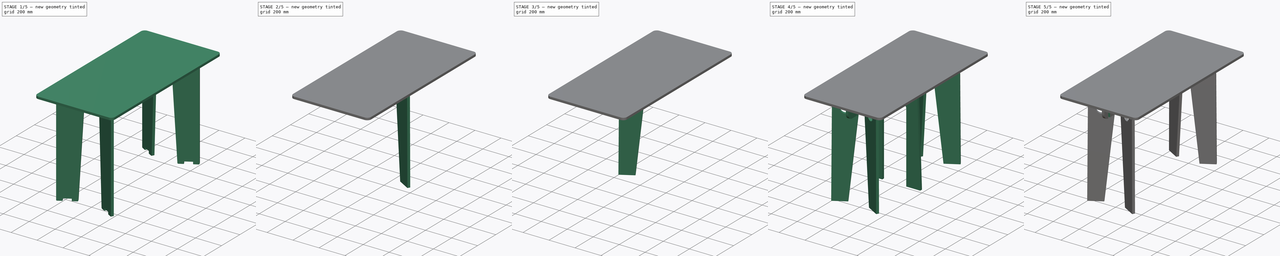
[diagram: build sequence overview — one tinted view per stage of 5, left to right]
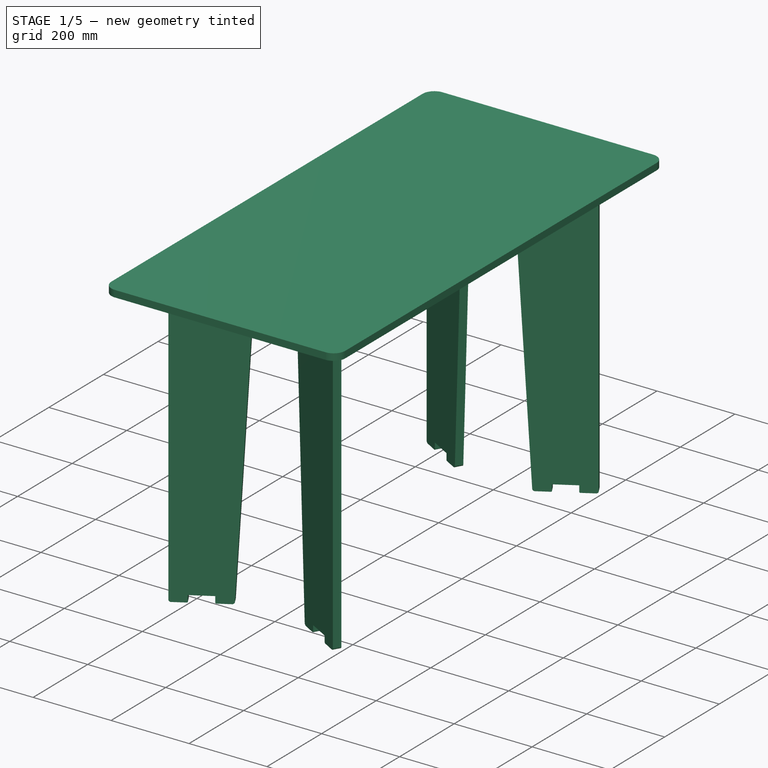
[diagram: stage 1 of 5 — iso view after this stage's code; geometry added in this stage tinted green]
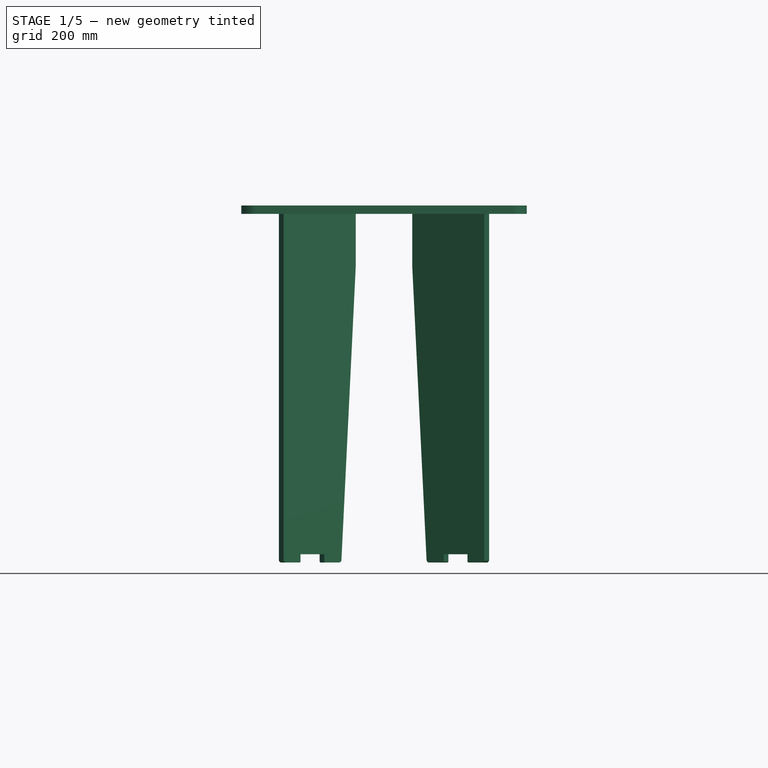
[diagram: stage 1 of 5 — front view after this stage's code; geometry added in this stage tinted green]
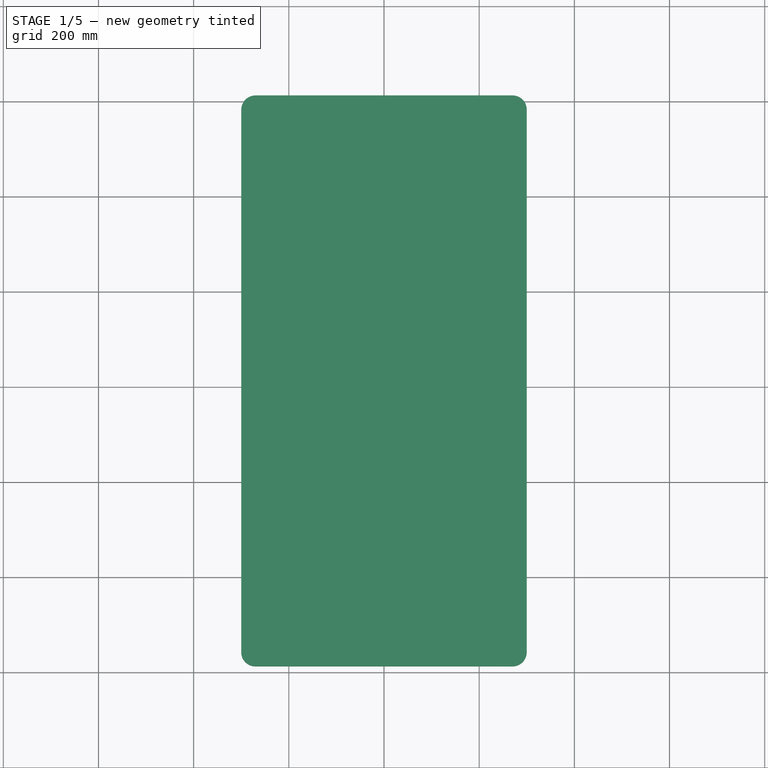
[diagram: stage 1 of 5 — top view after this stage's code; geometry added in this stage tinted green]
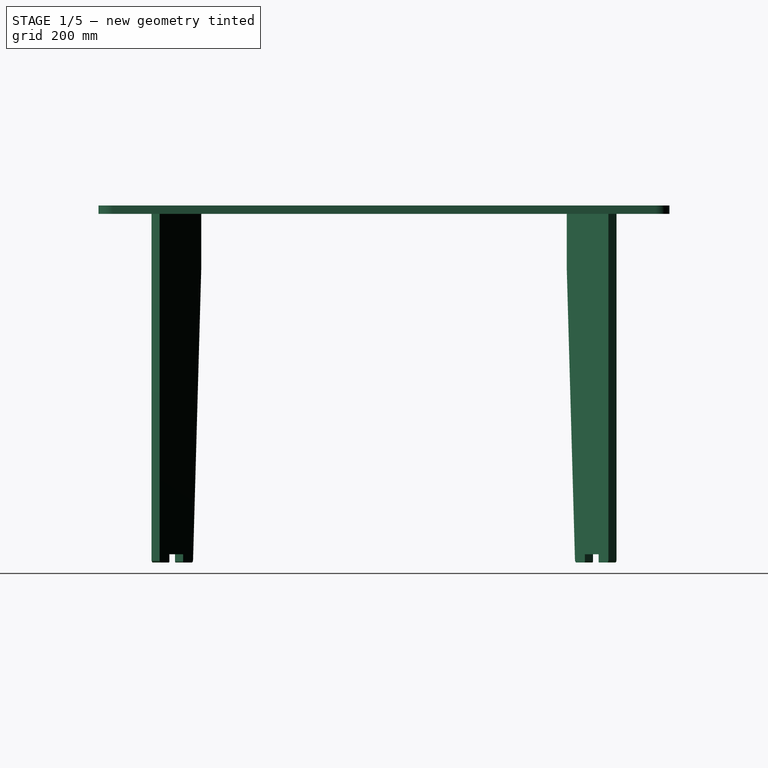
[diagram: stage 1 of 5 — right view after this stage's code; geometry added in this stage tinted green]
FCSTD DOCUMENT  (FreeCAD 0.16RUnknown)
Label: desk
License: CreativeCommons Attribution-ShareAlike
LicenseURL: http://creativecommons.org/licenses/by-sa/4.0/
objects: Part::Feature×10, Part::FeaturePython×9, Sketcher::SketchObject×7, PartDesign::Pad×6, Part::Mirroring×6, Part::MultiFuse×5, Part::Cut×5, Part::Part2DObjectPython×4, App::DocumentObjectGroup×2, Part::Extrusion×2, Part::Fuse×2, Spreadsheet::Sheet×1, PartDesign::Pocket×1
note: 64 computed .brp shape members not serialized (recipe doc carries the construction recipe); baked Part::Feature solids carry a one-line shape summary decoded from their .brp

FEATURE [Spreadsheet::Sheet] Spreadsheet  label="equations"
  cells = A1=Desk Height ; C1=750; A2=Desk Width; C2=600; A3=Desk Length ; C3=1200; A5=Plywood Thickness; B5=plw; C5(plw)=19.6; A6=Pocket Thickness; B6=pok; C6(pok)==C5 - 0.5; A7=Chipwood thickness ; B7=chip; C7(chip)=17.5; A9=Leg Height; B9=lgh; C9(lgh)==C1 - C7; A10=Leg width; B10=lgwt; C10(lgwt)==C2 - 250; A11=Leg Width Bottom; B11=lgwb; C11(lgwb)==C2 - 200; A12=Leg distance apart; B12=lgda; C12(lgda)==C3 - 250; A14=Top Width; B14=tpw; C14(tpw)==C2; A15=Top Length; B15=tpl; C15(tpl)==C3
FEATURE [Sketcher::SketchObject] Sketch  label="leg1"
  Placement = pos=(0,0,0) rot=(1,0,0;1.5708rad)
  expr: Constraints[15] = equations.lgh
  expr: Constraints[54] = equations.chip
  expr: Constraints.Constraint40 = Constraints.tewi
  expr: Constraints.Constraint17 = equations.plw * 5.5
  expr: Constraints.pocket = equations.pok
  expr: Constraints.Constraint16 = equations.lgwt
  sketch-geometry (24):
    g0: LineSegment StartX=-175 StartY=732.5 StartZ=0 EndX=-116.853 EndY=732.5 EndZ=0
    g1: LineSegment StartX=175 StartY=732.5 StartZ=0 EndX=200 EndY=0 EndZ=0
    g2: LineSegment StartX=200 StartY=0 StartZ=0 EndX=92.2 EndY=0 EndZ=0
    g3: LineSegment StartX=92.2 StartY=0 StartZ=0 EndX=92.3704 EndY=540.252 EndZ=0
    g4: LineSegment StartX=50.1356 StartY=582.5 StartZ=0 EndX=-50.1356 EndY=582.5 EndZ=0
    g5: LineSegment StartX=-92.3704 StartY=540.252 StartZ=0 EndX=-92.2 EndY=0 EndZ=0
    g6: LineSegment StartX=-92.2 StartY=0 StartZ=0 EndX=-200 EndY=0 EndZ=0
    g7: LineSegment StartX=-200 StartY=0 StartZ=0 EndX=-175 EndY=732.5 EndZ=0
    g8: LineSegment StartX=-116.853 StartY=750 StartZ=0 EndX=-46.8532 EndY=750 EndZ=0
    g9: LineSegment StartX=-46.8532 StartY=750 StartZ=0 EndX=-46.8532 EndY=732.5 EndZ=0
    g10: LineSegment StartX=-116.853 StartY=732.5 StartZ=0 EndX=-116.853 EndY=750 EndZ=0
    g11: LineSegment StartX=46.8532 StartY=750 StartZ=0 EndX=116.853 EndY=750 EndZ=0
    g12: LineSegment StartX=116.853 StartY=750 StartZ=0 EndX=116.853 EndY=732.5 EndZ=0
    g13: LineSegment StartX=46.8532 StartY=732.5 StartZ=0 EndX=46.8532 EndY=750 EndZ=0
    g14: LineSegment StartX=116.853 StartY=732.5 StartZ=0 EndX=175 EndY=732.5 EndZ=0
    g15: LineSegment StartX=-46.8532 StartY=732.5 StartZ=0 EndX=-9.55 EndY=732.5 EndZ=0
    g16: LineSegment StartX=9.55 StartY=732.5 StartZ=0 EndX=9.55 EndY=682.5 EndZ=0
    g17: LineSegment StartX=9.55 StartY=682.5 StartZ=0 EndX=-9.55 EndY=682.5 EndZ=0
    g18: LineSegment StartX=-9.55 StartY=682.5 StartZ=0 EndX=-9.55 EndY=732.5 EndZ=0
    g19: LineSegment StartX=9.55 StartY=732.5 StartZ=0 EndX=46.8532 EndY=732.5 EndZ=0
    g20: ArcOfCircle CenterX=50.1356 CenterY=540.265 CenterZ=0 NormalX=0 NormalY=0 NormalZ=1 Radius=42.2348 StartAngle=6.28287 EndAngle=7.85398
    g21: ArcOfCircle CenterX=-50.1356 CenterY=540.265 CenterZ=0 NormalX=0 NormalY=0 NormalZ=1 Radius=42.2348 StartAngle=1.5708 EndAngle=3.14191
    g22: Circle CenterX=-112.351 CenterY=652.5 CenterZ=0 NormalX=0 NormalY=0 NormalZ=1 Radius=40
    g23: Circle CenterX=112.351 CenterY=652.5 CenterZ=0 NormalX=0 NormalY=0 NormalZ=1 Radius=40
  constraints (59):
    c: Coincident(g14,g1)
    c: Coincident(g1,g2)
    c: Horizontal(g2)
    c: Coincident(g2,g3)
    c: Coincident(g5,g6)
    c: Horizontal(g6)
    c: Coincident(g6,g7)
    c: Coincident(g7,g0)
    c: Symmetric(g0,g14,g-2)
    c: Symmetric(g5,g2,g-2)
    c: Symmetric(g1,g6,g-2)
    c: PointOnObject(g1,g-1)  'onX'
    c: DistanceX(g6,g6) = 107.8  'Constraint17'
    c: DistanceX(g0,g14) = 350  'Constraint16'
    c: DistanceX(g6,g1) = 400  'Constraint15'
    c: DistanceY(g1,g14) = 732.5
    c: Coincident(g8,g9)
    c: Coincident(g10,g8)
    c: Horizontal(g8)
    c: Vertical(g9)
    c: Vertical(g10)
    c: Coincident(g11,g12)
    c: Coincident(g13,g11)
    c: Horizontal(g11)
    c: Vertical(g12)
    c: Vertical(g13)
    c: DistanceX(g8,g8) = 70  'tewi'
    c: DistanceX(g11,g11) = 70  'Constraint40'
    c: Tangent(g0,g14)  'Constraint39'
    c: Coincident(g13,g19)  'Constraint37'
    c: Coincident(g12,g14)  'Constraint36'
    c: Coincident(g0,g10)  'Constraint33'
    c: Coincident(g15,g9)
    c: Tangent(g0,g15)
    c: Symmetric(g9,g13,g-2)
    c: Coincident(g16,g17)
    c: Coincident(g17,g18)
    c: Horizontal(g17)
    c: Vertical(g16)
    c: Vertical(g18)
    c: Coincident(g15,g18)  'Constraint43'
    c: Coincident(g19,g16)  'Constraint42'
    c: Tangent(g15,g19)
    c: Tangent(g3,g20) = -1.5708
    c: Tangent(g4,g20) = -1.5708
    c: Tangent(g4,g21) = -1.5708
    c: Tangent(g5,g21) = -1.5708
    c: Symmetric(g21,g20,g-2)
    c: Horizontal(g4)
    c: DistanceY(g4,g1) = 150
    c: Symmetric(g22,g23,g-2)
    c: DistanceY(g23,g12) = 80
    c: Radius(g22) = 40
    c: Equal(g22,g23)
    c: DistanceY(g12,g12) = 17.5
    c: Equal(g9,g12)
    c: DistanceY(g16,g16) = 50
    c: DistanceX(g17,g17) = 19.1  'pocket'
    c: Symmetric(g16,g15,g-2)
FEATURE [Sketcher::SketchObject] Sketch002
  Placement = pos=(0,0,750) rot=(0,0,1;0rad)
  expr: Constraints[16] = equations.tpw
  expr: Constraints[15] = equations.tpl
  sketch-geometry (8):
    g0: LineSegment StartX=-270 StartY=600 StartZ=0 EndX=270 EndY=600 EndZ=0
    g1: LineSegment StartX=300 StartY=570 StartZ=0 EndX=300 EndY=-570 EndZ=0
    g2: LineSegment StartX=270 StartY=-600 StartZ=0 EndX=-270 EndY=-600 EndZ=0
    g3: LineSegment StartX=-300 StartY=-570 StartZ=0 EndX=-300 EndY=570 EndZ=0
    g4: ArcOfCircle CenterX=270 CenterY=570 CenterZ=0 NormalX=0 NormalY=0 NormalZ=1 Radius=30 StartAngle=0 EndAngle=1.5708
    g5: ArcOfCircle CenterX=-270 CenterY=570 CenterZ=0 NormalX=0 NormalY=0 NormalZ=1 Radius=30 StartAngle=1.5708 EndAngle=3.14159
    g6: ArcOfCircle CenterX=-270 CenterY=-570 CenterZ=0 NormalX=0 NormalY=0 NormalZ=1 Radius=30 StartAngle=3.14159 EndAngle=4.71239
    g7: ArcOfCircle CenterX=270 CenterY=-570 CenterZ=0 NormalX=0 NormalY=0 NormalZ=1 Radius=30 StartAngle=4.71239 EndAngle=6.28319
  constraints (19):
    c: Horizontal(g0)
    c: Horizontal(g2)
    c: Vertical(g1)
    c: Vertical(g3)
    c: Tangent(g0,g4) = 1.5708
    c: Tangent(g1,g4) = 1.5708
    c: Tangent(g0,g5) = 1.5708
    c: Tangent(g3,g5) = 1.5708
    c: Tangent(g2,g6) = 1.5708
    c: Tangent(g3,g6) = 1.5708
    c: Tangent(g1,g7) = 1.5708
    c: Tangent(g2,g7) = 1.5708
    c: Equal(g5,g6)
    c: Equal(g6,g7)
    c: Radius(g5) = 30
    c: Distance(g0,g2) = 1200
    c: Distance(g3,g1) = 600
    c: Symmetric(g4,g5,g-2)
    c: Symmetric(g6,g5,g-1)
FEATURE [PartDesign::Pad] Pad002  label="topInitial"
  Length = 17.5
  Length2 = 100
  Placement = pos=(0,0,750) rot=(0,0,1;0rad)
  Reversed = true
  Sketch = -> Sketch002
  Type = 0
  expr: Length = equations.chip
FEATURE [Part::Feature] Cut003_cs
  shape: bbox 600 x 1200 x 2e-07 mm, 0 faces, 0 solids (baked)
FEATURE [Part::Part2DObjectPython] Shape2DView  # Draft 2D object (typed FeaturePython)
  Base = -> Cut
  HiddenLines = false
  Projection = (-0.5,0.866025,-1.19209e-07)
  ProjectionMode = 0
  SegmentLength = 0.05
  Tessellation = false
FEATURE [App::DocumentObjectGroup] Group001  label="secondDesign"
  Group = -> [Line,Fusion002,Fusion004,Cut003,Cut003_cs,Shape2DView]
FEATURE [Sketcher::SketchObject] Sketch008  label="leg_1_3"
  Placement = pos=(0,131,0) rot=(0.935113,-0.250563,-0.250563;1.63783rad)
  expr: Constraints[20] = equations.chip
  expr: Constraints[19] = equations.lgh + equations.chip
  expr: Constraints[18] = equations.lgwt / 2
  sketch-geometry (17):
    g0: LineSegment StartX=80 StartY=749.92 StartZ=0 EndX=130 EndY=749.92 EndZ=0
    g1: LineSegment StartX=130 StartY=749.92 StartZ=0 EndX=130 EndY=732.42 EndZ=0
    g2: LineSegment StartX=130 StartY=732.42 StartZ=0 EndX=205 EndY=732.42 EndZ=0
    g3: LineSegment StartX=205 StartY=732.42 StartZ=0 EndX=205 EndY=749.92 EndZ=0
    g4: LineSegment StartX=205 StartY=749.92 StartZ=0 EndX=255 EndY=749.92 EndZ=0
    g5: LineSegment StartX=255 StartY=749.92 StartZ=0 EndX=255 EndY=5.16475 EndZ=0
    g6: LineSegment StartX=249.755 StartY=-0.0801346 StartZ=0 EndX=216.26 EndY=-0.0801346 EndZ=0
    g7: LineSegment StartX=114.567 StartY=5.45017 StartZ=0 EndX=80 EndY=619.92 EndZ=0
    g8: LineSegment StartX=80 StartY=619.92 StartZ=0 EndX=80 EndY=749.92 EndZ=0
    g9: LineSegment StartX=156.289 StartY=17.297 StartZ=0 EndX=213.883 EndY=17.297 EndZ=0
    g10: LineSegment StartX=213.883 StartY=17.297 StartZ=0 EndX=213.883 EndY=2.29701 EndZ=0
    g11: LineSegment StartX=156.289 StartY=2.29701 StartZ=0 EndX=156.289 EndY=17.297 EndZ=0
    g12: LineSegment StartX=153.912 StartY=-0.0801346 StartZ=0 EndX=120.417 EndY=-0.0801346 EndZ=0
    g13: ArcOfCircle CenterX=120.417 CenterY=5.77927 CenterZ=0 NormalX=0 NormalY=0 NormalZ=1 Radius=5.85941 StartAngle=3.19779 EndAngle=4.71239
    g14: ArcOfCircle CenterX=249.755 CenterY=5.16475 CenterZ=0 NormalX=0 NormalY=0 NormalZ=1 Radius=5.24489 StartAngle=4.71239 EndAngle=6.28319
    g15: ArcOfCircle CenterX=216.26 CenterY=2.29701 CenterZ=0 NormalX=0 NormalY=0 NormalZ=1 Radius=2.37714 StartAngle=3.14159 EndAngle=4.71239
    g16: ArcOfCircle CenterX=153.912 CenterY=2.29701 CenterZ=0 NormalX=0 NormalY=0 NormalZ=1 Radius=2.37714 StartAngle=4.71239 EndAngle=6.28319
  constraints (40):
    c: Coincident(g0,g1)
    c: Coincident(g1,g2)
    c: Horizontal(g2)
    c: Coincident(g2,g3)
    c: Coincident(g3,g4)
    c: Horizontal(g4)
    c: Coincident(g4,g5)
    c: Horizontal(g6)
    c: Coincident(g7,g8)
    c: Coincident(g8,g0)
    c: Vertical(g8)
    c: Vertical(g3)
    c: Vertical(g1)
    c: Horizontal(g0)
    c: Equal(g0,g4)
    c: DistanceX(g0,g0) = 50
    c: Vertical(g5)
    c: Equal(g1,g3)
    c: Distance(g0,g5) = 175
    c: Distance(g4,g6) = 750
    c: DistanceY(g3,g3) = 17.5
    c: DistanceY(g8,g8) = 130
    c: DistanceX(g-2,g7) = 80
    c: Coincident(g9,g10)
    c: Coincident(g11,g9)
    c: Horizontal(g9)
    c: Vertical(g10)
    c: Vertical(g11)
    c: Tangent(g6,g12)
    c: Equal(g12,g6)
    c: Tangent(g7,g13) = 1.5708
    c: Tangent(g12,g13) = 1.5708
    c: Tangent(g5,g14) = 1.5708
    c: Tangent(g6,g14) = 1.5708
    c: Tangent(g6,g15) = 1.5708
    c: Tangent(g10,g15) = -1.5708
    c: Tangent(g11,g16) = -1.5708
    c: Tangent(g12,g16) = 1.5708
    c: Equal(g15,g16)
    c: DistanceY(g11,g11) = 15
FEATURE [PartDesign::Pad] Pad007
  Length = 19.6
  Length2 = 100
  Placement = pos=(0,131,0) rot=(0.935113,-0.250563,-0.250563;1.63783rad)
  Sketch = -> Sketch008
  Type = 0
  expr: Length = equations.plw
FEATURE [Part::Mirroring] Part__Mirroring004  label="Pad007 (Mirror #5)"
  Base = (0,0,0)
  Normal = (1,0,0)
  Source = -> Pad007
FEATURE [Part::MultiFuse] Fusion005
  Shapes = -> [Part__Mirroring004,Pad007]
FEATURE [Part::Mirroring] Part__Mirroring005  label="Fusion005 (Mirror #6)"
  Base = (0,0,0)
  Normal = (0,1,0)
  Placement = pos=(0,950,0) rot=(0,0,1;0rad)
  Source = -> Fusion005
FEATURE [Part::MultiFuse] Fusion006  label="leg_3"
  Placement = pos=(0,-475,0) rot=(0,0,1;0rad)
  Shapes = -> [Part__Mirroring005,Fusion005]
FEATURE [Part::FeaturePython] Clone008  label="Clone of Fusion006"  # Draft clone (typed FeaturePython)
  Objects = -> [Fusion006]
  Placement = pos=(0,-475,0) rot=(0,0,1;0rad)
  Scale = (1,1,1)
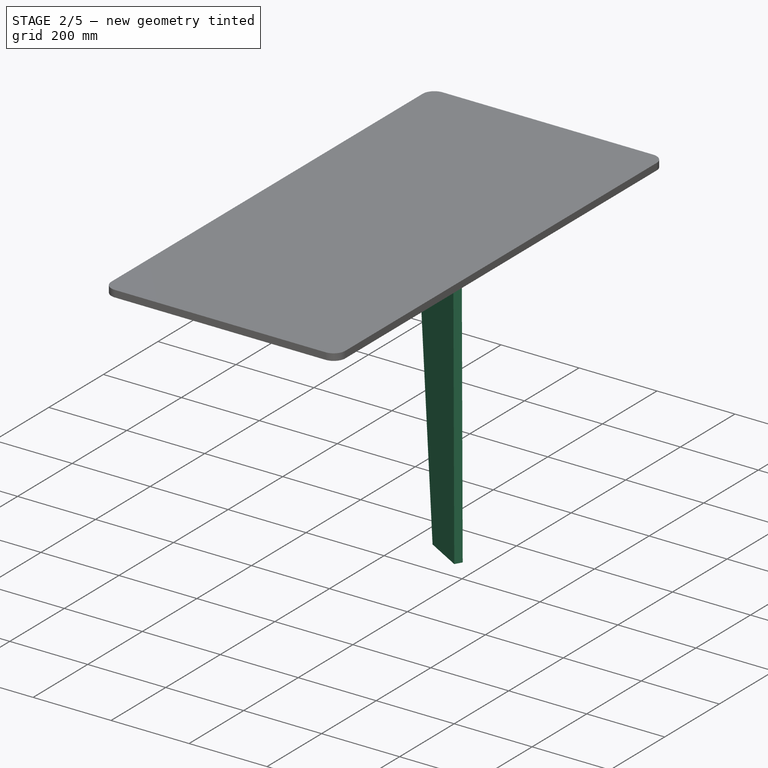
[diagram: stage 2 of 5 — iso view after this stage's code; geometry added in this stage tinted green]
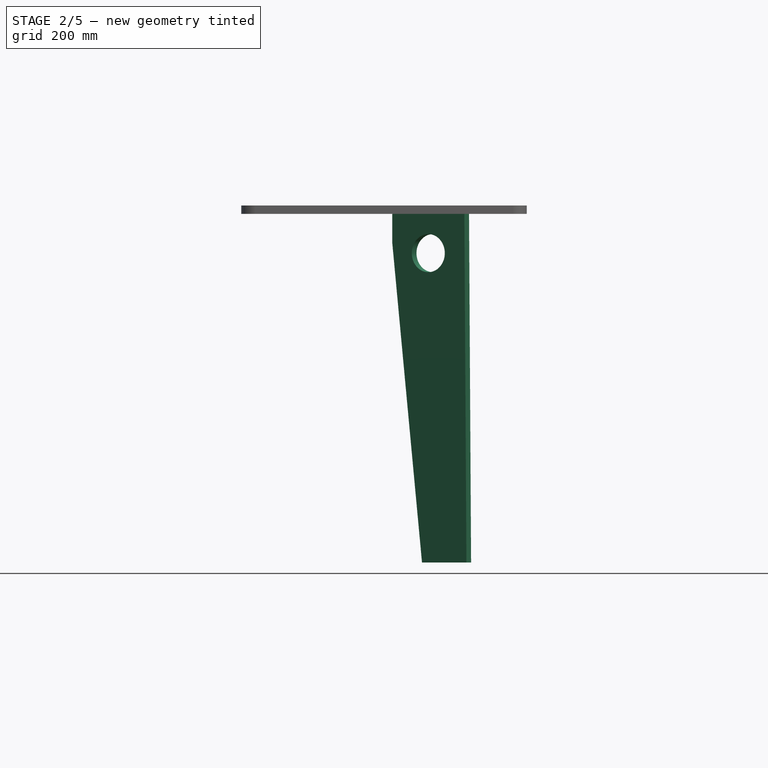
[diagram: stage 2 of 5 — front view after this stage's code; geometry added in this stage tinted green]
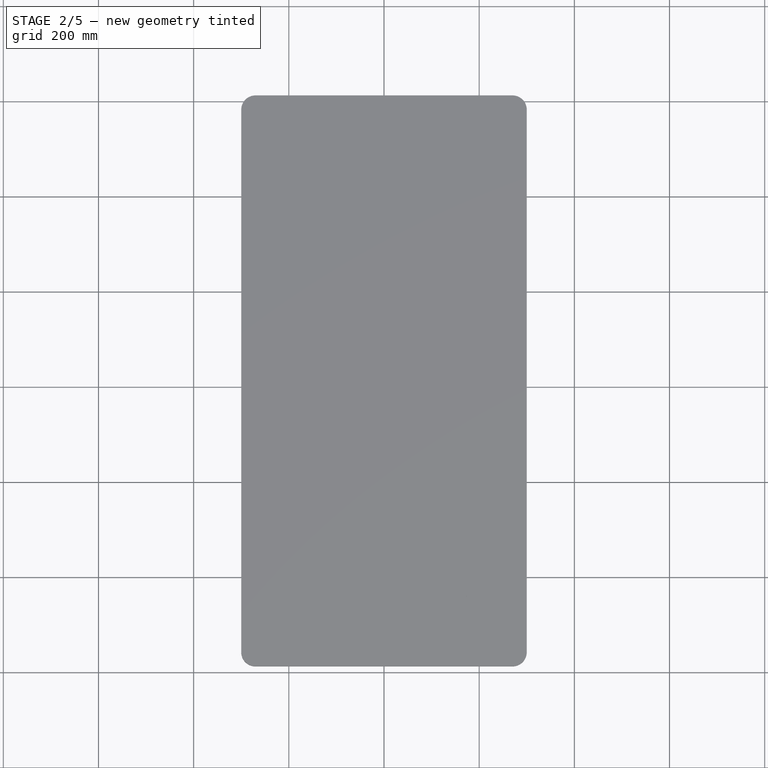
[diagram: stage 2 of 5 — top view after this stage's code; geometry added in this stage tinted green]
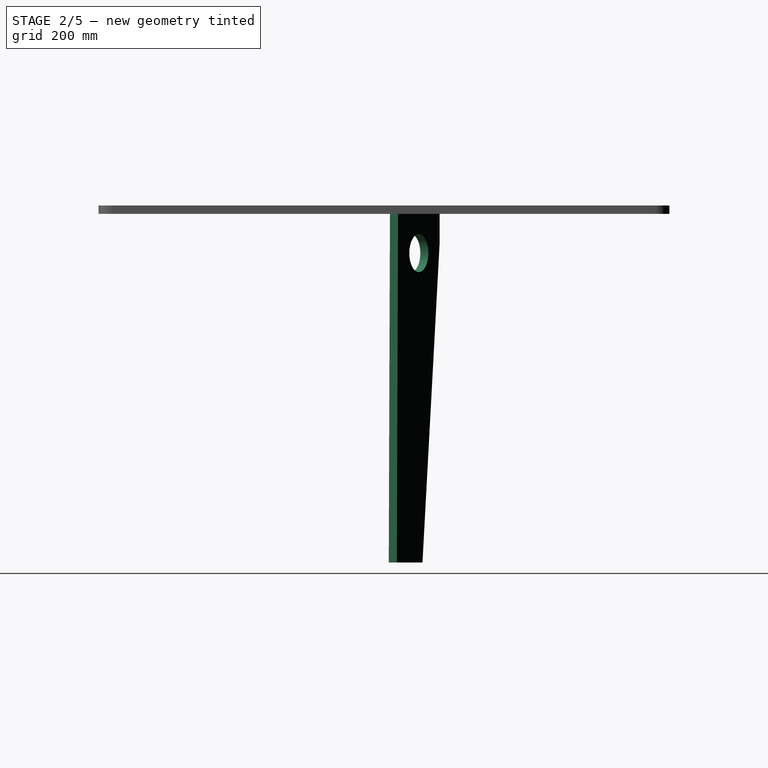
[diagram: stage 2 of 5 — right view after this stage's code; geometry added in this stage tinted green]
FEATURE [Part::Feature] Face
  shape: bbox 155.9 x 90 x 750 mm, 1 faces, 0 solids (baked)
FEATURE [Part::Feature] Face001
  shape: bbox 69.28 x 40 x 80 mm, 1 faces, 0 solids (baked)
FEATURE [Part::Extrusion] Extrusion
  Base = -> Face
  Dir = (-9.8,16.9741,0)
  Solid = true
FEATURE [Part::Extrusion] Extrusion001
  Base = -> Face001
  Dir = (-205.47,355.884,0)
  Solid = true
FEATURE [Part::Cut] Cut
  Base = -> Extrusion
  Placement = pos=(0,110,0) rot=(0,0,1;0rad)
  Tool = -> Extrusion001
FEATURE [Part::FeaturePython] Clone005  label="Clone of Cut"  # Draft clone (typed FeaturePython)
  Objects = -> [Cut]
  Scale = (1,1,1)
FEATURE [Part::Mirroring] Part__Mirroring002  label="Clone of Cut (Mirror #3)"
  Base = (0,0,0)
  Normal = (1,0,0)
  Placement = pos=(0,110,0) rot=(0,0,1;0rad)
  Source = -> Clone005
FEATURE [Part::FeaturePython] Clone007  label="Clone of topInitial001"  # Draft clone (typed FeaturePython)
  Objects = -> [Pad002]
  Placement = pos=(0,0,750) rot=(0,0,1;0rad)
  Scale = (1,1,1)
FEATURE [Part::Cut] Cut004  label="top_3"
  Base = -> Clone007
  Tool = -> Clone008
FEATURE [Part::Feature] Cut004_cs
  shape: bbox 600 x 1200 x 2e-07 mm, 0 faces, 0 solids (baked)
FEATURE [Part::Part2DObjectPython] Shape2DView001  # Draft 2D object (typed FeaturePython)
  Base = -> Pad007
  FaceNumbers = [10]
  HiddenLines = false
  Projection = (-0.5,-0.866025,-1.19209e-07)
  ProjectionMode = 0
  SegmentLength = 0.05
  Tessellation = false
FEATURE [Part::Feature] Cut004_cs001
  shape: bbox 600 x 1200 x 2e-07 mm, 0 faces, 0 solids (baked)
FEATURE [Part::Part2DObjectPython] Shape2DView002  # Draft 2D object (typed FeaturePython)
  Base = -> Pad007
  HiddenLines = false
  Projection = (-0.5,-0.866025,-1.19209e-07)
  ProjectionMode = 0
  SegmentLength = 0.05
  Tessellation = false
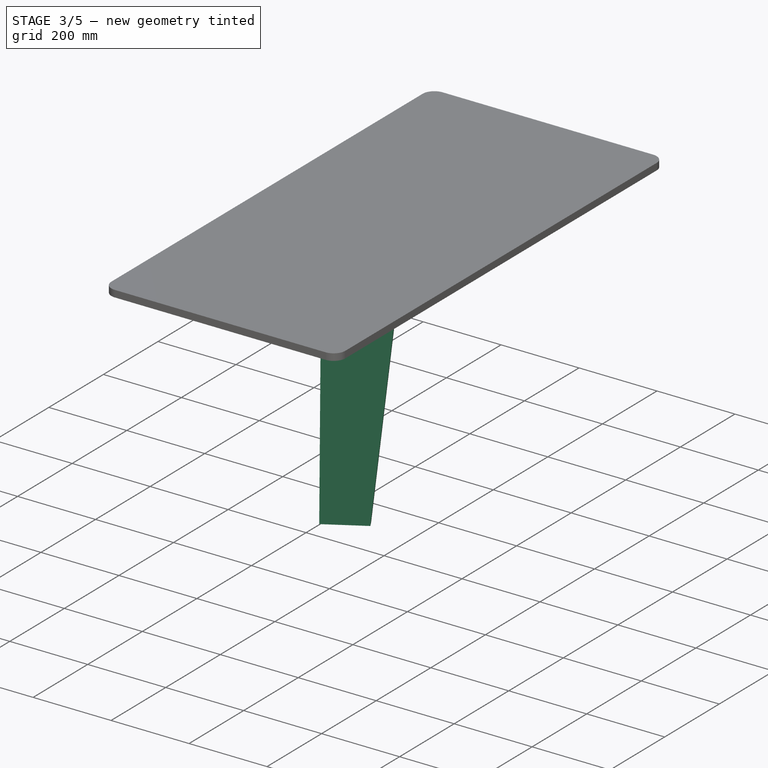
[diagram: stage 3 of 5 — iso view after this stage's code; geometry added in this stage tinted green]
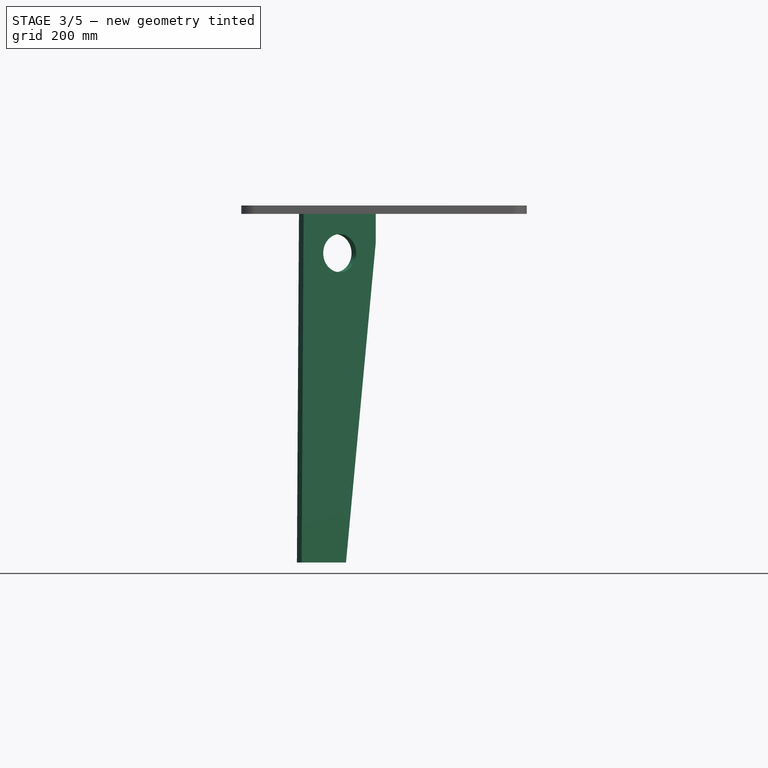
[diagram: stage 3 of 5 — front view after this stage's code; geometry added in this stage tinted green]
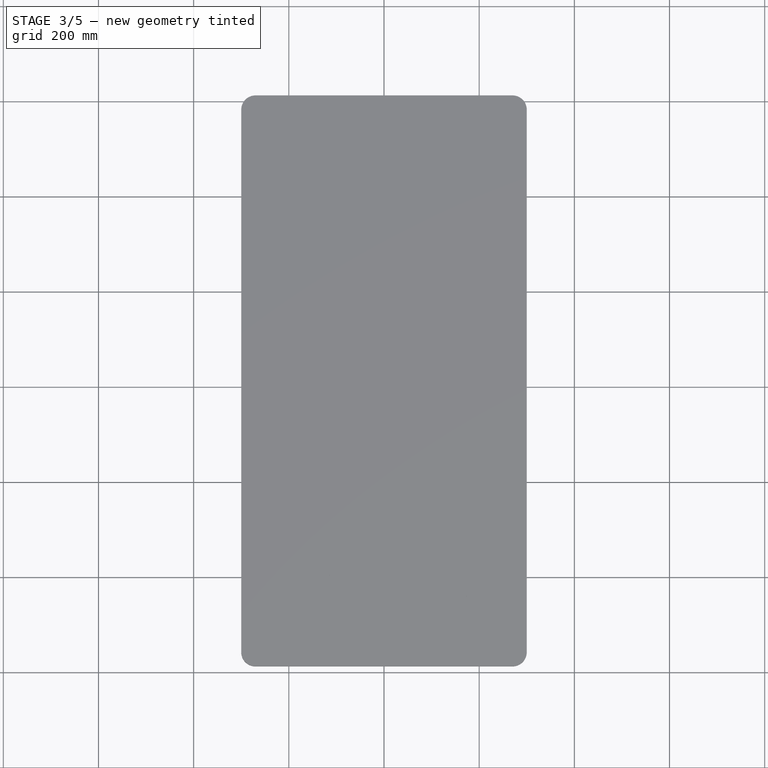
[diagram: stage 3 of 5 — top view after this stage's code; geometry added in this stage tinted green]
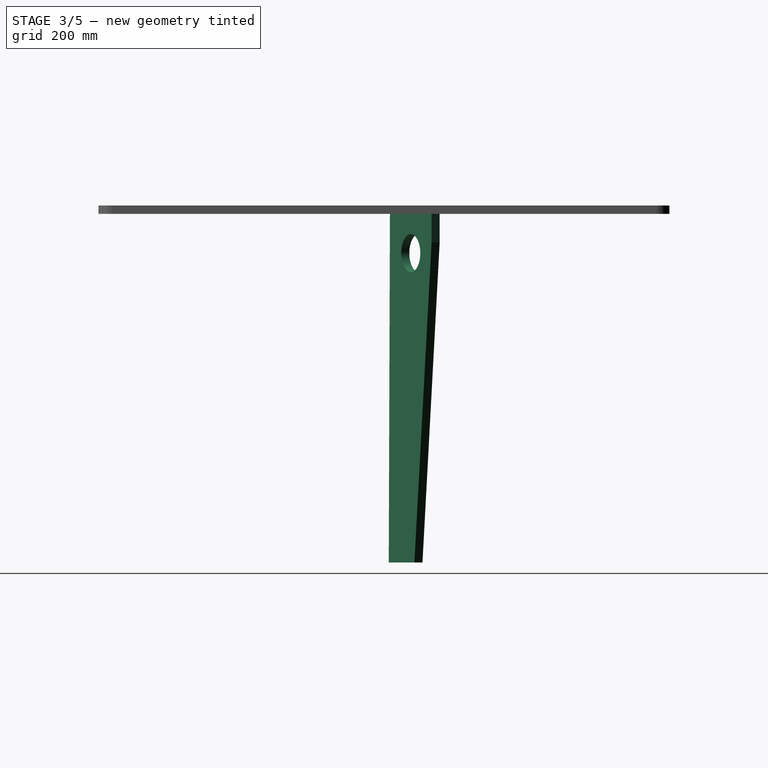
[diagram: stage 3 of 5 — right view after this stage's code; geometry added in this stage tinted green]
FEATURE [Part::Feature] Cut001_cs  label="top"
  shape: bbox 600 x 1200 x 2e-07 mm, 0 faces, 0 solids (baked)
FEATURE [Part::Feature] Cut002_cs  label="stem"
  shape: bbox 2e-07 x 1075 x 99.1 mm, 0 faces, 0 solids (baked)
FEATURE [Part::Feature] Fusion_cs  label="bothLeg"
  shape: bbox 400 x 950 x 750 mm, 0 faces, 0 solids (baked)
FEATURE [Part::Feature] Pad004_cs  label="leg"
  shape: bbox 400 x 2e-07 x 750 mm, 0 faces, 0 solids (baked)
FEATURE [Part::Feature] Cut001_cs001  label="roundTopChip"
  shape: bbox 600 x 1200 x 2e-07 mm, 0 faces, 0 solids (baked)
FEATURE [App::DocumentObjectGroup] Group  label="firstDesign"
  Group = -> [Pad002,Cut001_cs001,Pad004_cs,Fusion_cs,Cut001_cs,Cut002_cs,Cut002,Cut001,Fusion,Pad005]
FEATURE [Sketcher::SketchObject] Sketch007
  Placement = pos=(0,110,0) rot=(0.935113,-0.250563,-0.250563;1.63783rad)
  expr: Constraints[29] = equations.lgwt / 4 + 20
  expr: Constraints[26] = equations.lgh
  expr: Constraints[14] = equations.plw * 5.5
  expr: Constraints[18] = equations.chip
  expr: Constraints[15] = equations.lgwt / 2
  sketch-geometry (10):
    g0: LineSegment StartX=92.2 StartY=0 StartZ=0 EndX=200 EndY=0 EndZ=0
    g1: LineSegment StartX=200 StartY=0 StartZ=0 EndX=195.004 EndY=732.5 EndZ=0
    g2: LineSegment StartX=195.004 StartY=732.5 StartZ=0 EndX=142.502 EndY=732.5 EndZ=0
    g3: LineSegment StartX=142.502 StartY=732.5 StartZ=0 EndX=142.502 EndY=750 EndZ=0
    g4: LineSegment StartX=142.502 StartY=750 StartZ=0 EndX=72.502 EndY=750 EndZ=0
    g5: LineSegment StartX=72.502 StartY=750 StartZ=0 EndX=72.502 EndY=732.5 EndZ=0
    g6: LineSegment StartX=72.502 StartY=732.5 StartZ=0 EndX=20 EndY=732.5 EndZ=0
    g7: LineSegment StartX=20 StartY=732.5 StartZ=0 EndX=20 EndY=672.5 EndZ=0
    g8: LineSegment StartX=20 StartY=672.5 StartZ=0 EndX=92.2 EndY=0 EndZ=0
    g9: Circle CenterX=107.5 CenterY=650 CenterZ=0 NormalX=0 NormalY=0 NormalZ=1 Radius=40
  constraints (30):
    c: Horizontal(g0)
    c: Coincident(g0,g1)
    c: Coincident(g1,g2)
    c: Horizontal(g2)
    c: Coincident(g2,g3)
    c: Coincident(g3,g4)
    c: Horizontal(g4)
    c: Coincident(g4,g5)
    c: Coincident(g5,g6)
    c: Horizontal(g6)
    c: DistanceX(g-2,g6) = 20
    c: PointOnObject(g0,g-1)
    c: Vertical(g5)
    c: Vertical(g3)
    c: DistanceX(g0,g0) = 107.8
    c: Distance(g6,g1) = 175
    c: Equal(g6,g2)
    c: DistanceX(g4,g4) = 70
    c: DistanceY(g3,g3) = 17.5
    c: Equal(g3,g5)
    c: DistanceX(g-2,g0) = 200
    c: Coincident(g6,g7)
    c: Vertical(g7)
    c: Coincident(g7,g8)
    c: Coincident(g8,g0)
    c: DistanceY(g7,g7) = 60
    c: Distance(g1,g0) = 732.5
    c: Distance(g9,g4) = 100
    c: Radius(g9) = 40
    c: DistanceX(g-2,g9) = 107.5
FEATURE [Part::Part2DObjectPython] Line  # Draft 2D object (typed FeaturePython)
  ChamferSize = 0
  Closed = false
  End = (0,-5.96046e-06,50)
  FilletRadius = 0
  Length = 50
  MakeFace = true
  Points = (2) [(0,0,0),(0,-5.96046e-06,50)]
  Start = (0,0,0)
  Subdivisions = 0
FEATURE [PartDesign::Pad] Pad006
  Length = 19.6
  Length2 = 100
  Placement = pos=(0,110,0) rot=(0.935113,-0.250563,-0.250563;1.63783rad)
  Reversed = true
  Sketch = -> Sketch007
  Type = 0
  expr: Length = equations.plw
FEATURE [Part::Mirroring] Part__Mirroring  label="Pad006 (Mirror #1)"
  Base = (3.05176e-05,63.4868,375)
  Normal = (1,0,-1.19209e-07)
  Source = -> Pad006
FEATURE [Part::FeaturePython] Clone004  label="slantTopClone"  # Draft clone (typed FeaturePython)
  Objects = -> [Pad002]
  Placement = pos=(0,0,750) rot=(0,0,1;0rad)
  Scale = (1,1,1)
FEATURE [Part::MultiFuse] Fusion003
  Shapes = -> [Cut,Part__Mirroring002]
FEATURE [Part::Mirroring] Part__Mirroring003  label="Fusion003 (Mirror #4)"
  Base = (0,0,0)
  Normal = (0,1,0)
  Placement = pos=(0,950,0) rot=(0,0,1;0rad)
  Source = -> Fusion003
FEATURE [Part::MultiFuse] Fusion004  label="legsSlant"
  Placement = pos=(0,-475,0) rot=(0,0,1;0rad)
  Shapes = -> [Fusion003,Part__Mirroring003]
FEATURE [Part::FeaturePython] Clone006  label="Clone of legsSlant"  # Draft clone (typed FeaturePython)
  Objects = -> [Fusion004]
  Placement = pos=(0,-475,0) rot=(0,0,1;0rad)
  Scale = (1,1,1)
FEATURE [Part::Cut] Cut003  label="topSlant"
  Base = -> Clone004
  Tool = -> Clone006
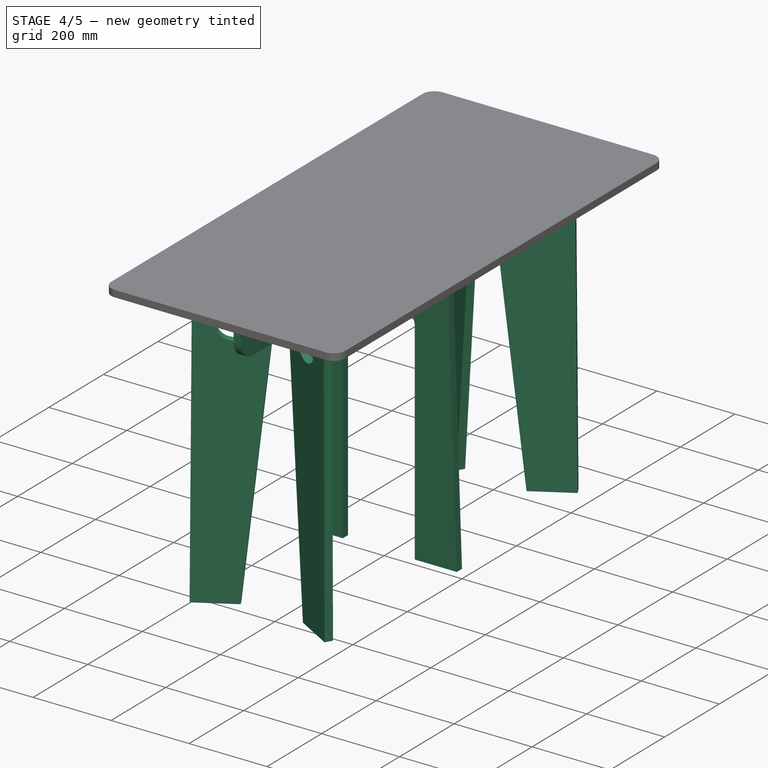
[diagram: stage 4 of 5 — iso view after this stage's code; geometry added in this stage tinted green]
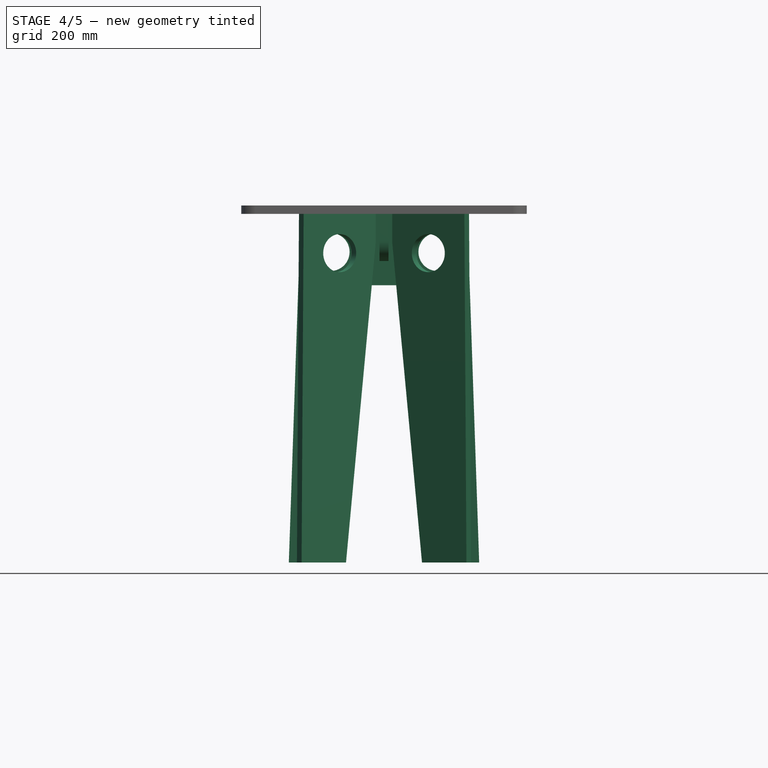
[diagram: stage 4 of 5 — front view after this stage's code; geometry added in this stage tinted green]
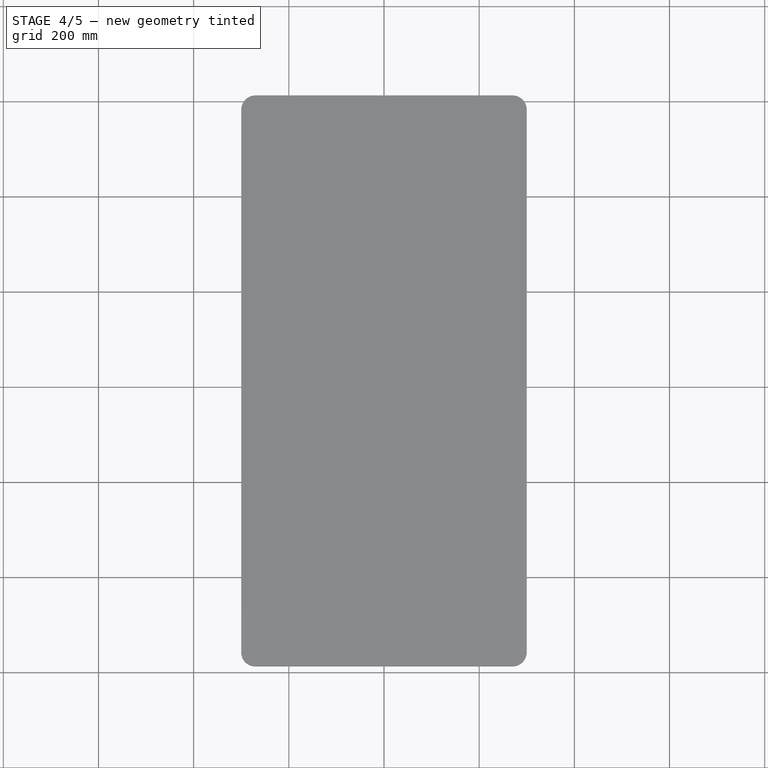
[diagram: stage 4 of 5 — top view after this stage's code; geometry added in this stage tinted green]
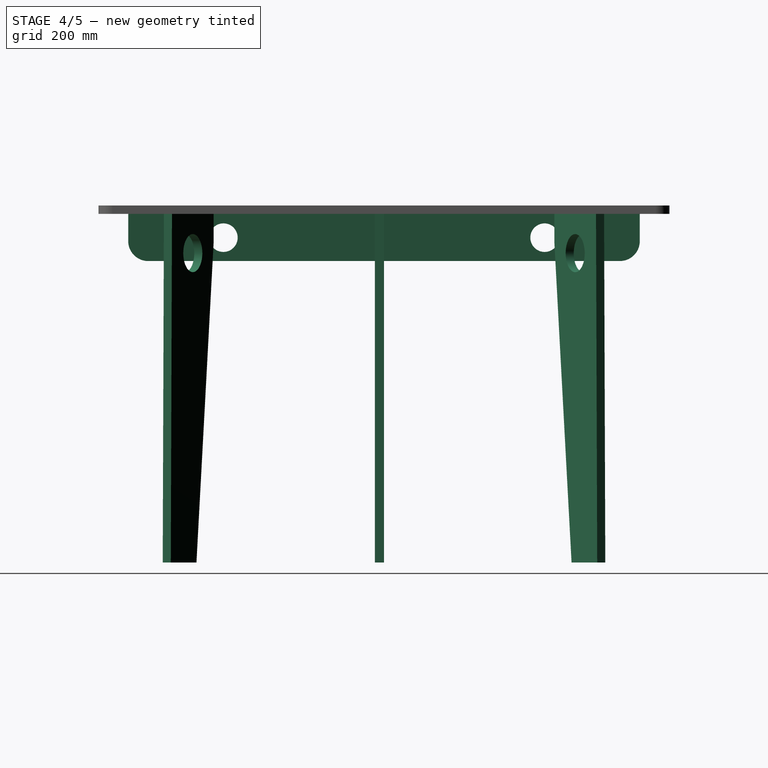
[diagram: stage 4 of 5 — right view after this stage's code; geometry added in this stage tinted green]
FEATURE [PartDesign::Pad] Pad004  label="legPad1"
  Length = 19.1
  Length2 = 100
  Placement = pos=(0,0,0) rot=(1,0,0;1.5708rad)
  Sketch = -> Sketch
  Type = 0
  expr: Length = equations.pok
FEATURE [Sketcher::SketchObject] Sketch005
  Placement = pos=(0,0,682.5) rot=(0.57735,0.57735,0.57735;2.0944rad)
  expr: Constraints[7] = equations.tpl - 125
  sketch-geometry (6):
    g0: LineSegment StartX=-537.5 StartY=50 StartZ=0 EndX=537.5 EndY=50 EndZ=0
    g1: LineSegment StartX=537.5 StartY=50 StartZ=0 EndX=537.5 EndY=-7.24359 EndZ=0
    g2: LineSegment StartX=495.641 StartY=-49.1028 StartZ=0 EndX=-495.641 EndY=-49.1028 EndZ=0
    g3: LineSegment StartX=-537.5 StartY=-7.24359 StartZ=0 EndX=-537.5 EndY=50 EndZ=0
    g4: ArcOfCircle CenterX=495.641 CenterY=-7.24359 CenterZ=0 NormalX=0 NormalY=0 NormalZ=1 Radius=41.8592 StartAngle=4.71239 EndAngle=6.28319
    g5: ArcOfCircle CenterX=-495.641 CenterY=-7.24359 CenterZ=0 NormalX=0 NormalY=0 NormalZ=1 Radius=41.8592 StartAngle=3.14159 EndAngle=4.71239
  constraints (13):
    c: Coincident(g0,g1)
    c: Coincident(g3,g0)
    c: Horizontal(g0)
    c: Horizontal(g2)
    c: Vertical(g1)
    c: Vertical(g3)
    c: Symmetric(g0,g0,g-2)
    c: DistanceX(g0,g0) = 1075
    c: Tangent(g1,g4) = 1.5708
    c: Tangent(g2,g4) = 1.5708
    c: Tangent(g2,g5) = 1.5708
    c: Tangent(g3,g5) = 1.5708
    c: Symmetric(g5,g4,g-2)
FEATURE [PartDesign::Pad] Pad005  label="StemMinusPocket"
  Length = 19.1
  Length2 = 100
  Midplane = true
  Placement = pos=(0,0,682.5) rot=(0.57735,0.57735,0.57735;2.0944rad)
  Sketch = -> Sketch005
  Type = 0
  expr: Length = equations.pok
FEATURE [Sketcher::SketchObject] Sketch006
  ExternalGeometry = -> [Pad005]
  Placement = pos=(9.55,0,682.5) rot=(0.57735,0.57735,0.57735;2.0944rad)
  Support = -> Pad005 [Face8]
  sketch-geometry (2):
    g0: Circle CenterX=-337.5 CenterY=0 CenterZ=0 NormalX=0 NormalY=0 NormalZ=1 Radius=30
    g1: Circle CenterX=337.5 CenterY=0 CenterZ=0 NormalX=0 NormalY=0 NormalZ=1 Radius=30
  constraints (8):
    c: PointOnObject(g1,g-1)
    c: PointOnObject(g0,g-1)
    c: Equal(g1,g0)
    c: Distance(g1,g-4) = 200
    c: Distance(g0,g-3) = 200
    c: Distance(g-1,g-4) = 537.5
    c: Distance(g-1,g-3) = 537.5
    c: Radius(g1) = 30
FEATURE [PartDesign::Pocket] Pocket  label="STEMprimitive"
  Length = 20
  Placement = pos=(0,0,682.5) rot=(0.57735,0.57735,0.57735;2.0944rad)
  Sketch = -> Sketch006
  Type = 0
FEATURE [Part::Fuse] Fusion001
  Base = -> Pad006
  Tool = -> Part__Mirroring
FEATURE [Part::FeaturePython] Clone003  label="Clone of Fusion001"  # Draft clone (typed FeaturePython)
  Objects = -> [Fusion001]
  Scale = (1,1,1)
FEATURE [Part::Mirroring] Part__Mirroring001  label="Clone of Fusion001 (Mirror #2)"
  Base = (0,0,0)
  Normal = (0,1,0)
  Placement = pos=(0,950,0) rot=(0,0,1;0rad)
  Source = -> Clone003
FEATURE [Part::Fuse] Fusion002
  Base = -> Fusion001
  Placement = pos=(0,-475,0) rot=(0,0,1;0rad)
  Tool = -> Part__Mirroring001
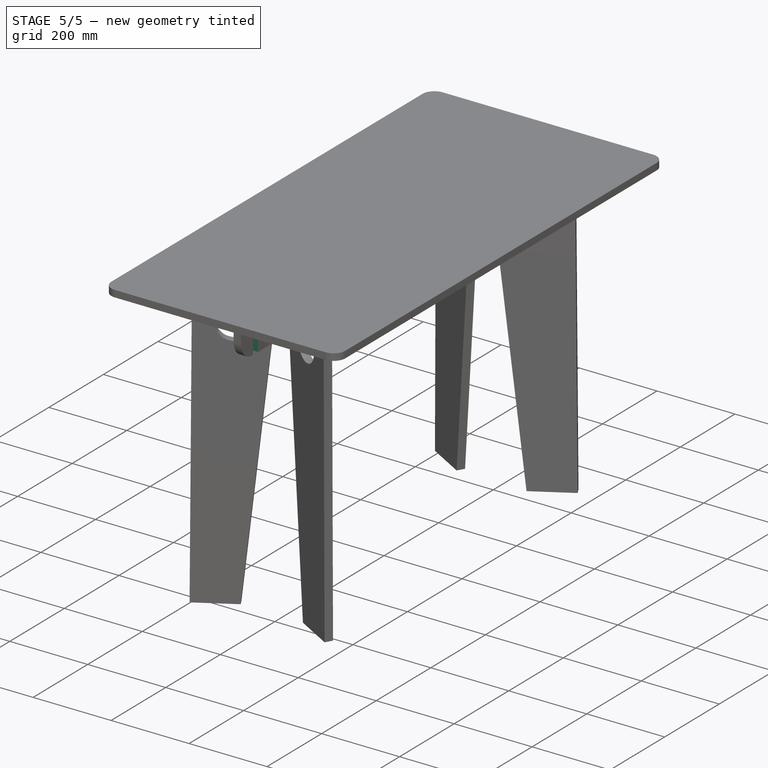
[diagram: stage 5 of 5 — iso view after this stage's code; geometry added in this stage tinted green]
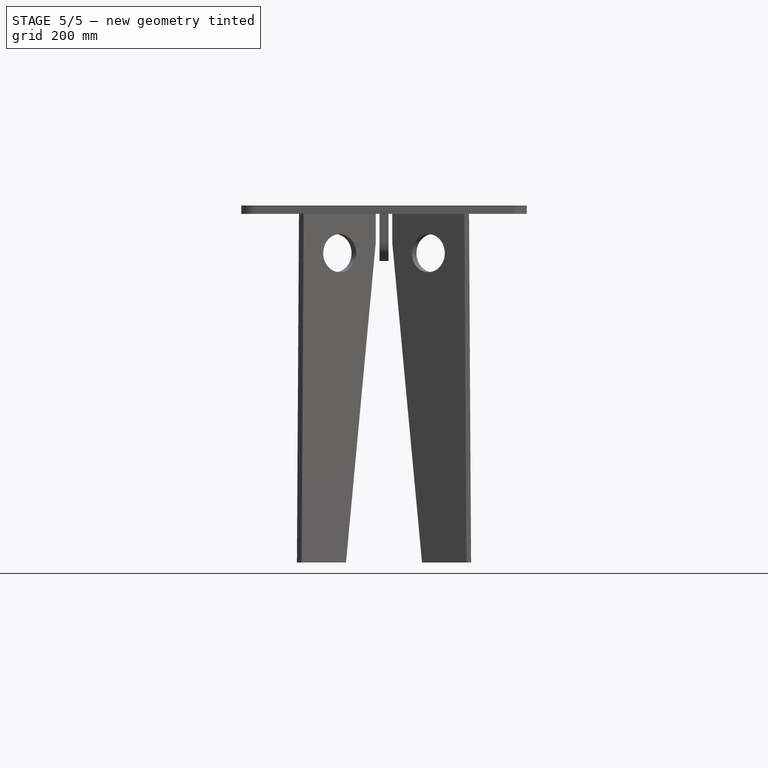
[diagram: stage 5 of 5 — front view after this stage's code; geometry added in this stage tinted green]
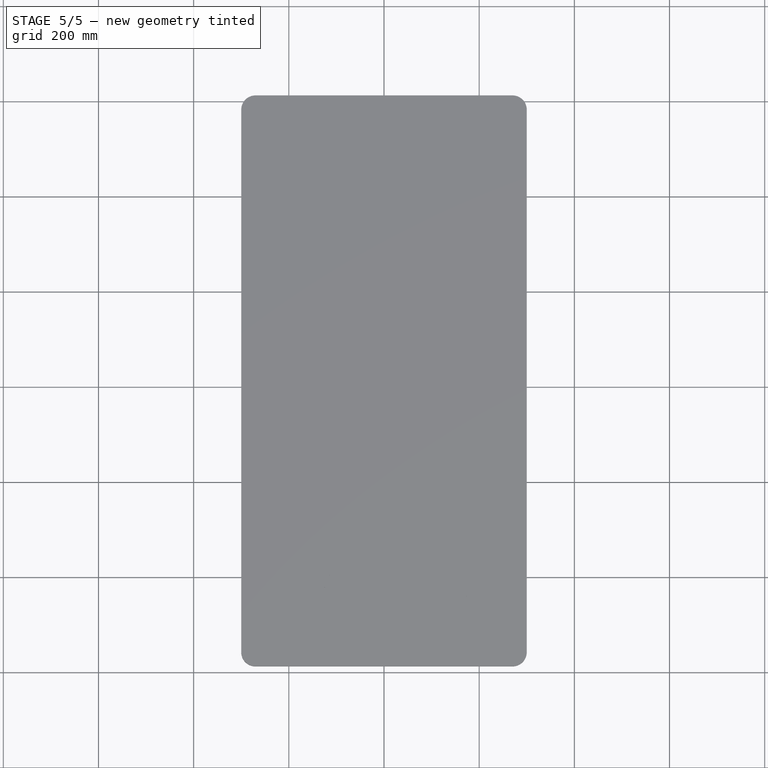
[diagram: stage 5 of 5 — top view after this stage's code; geometry added in this stage tinted green]
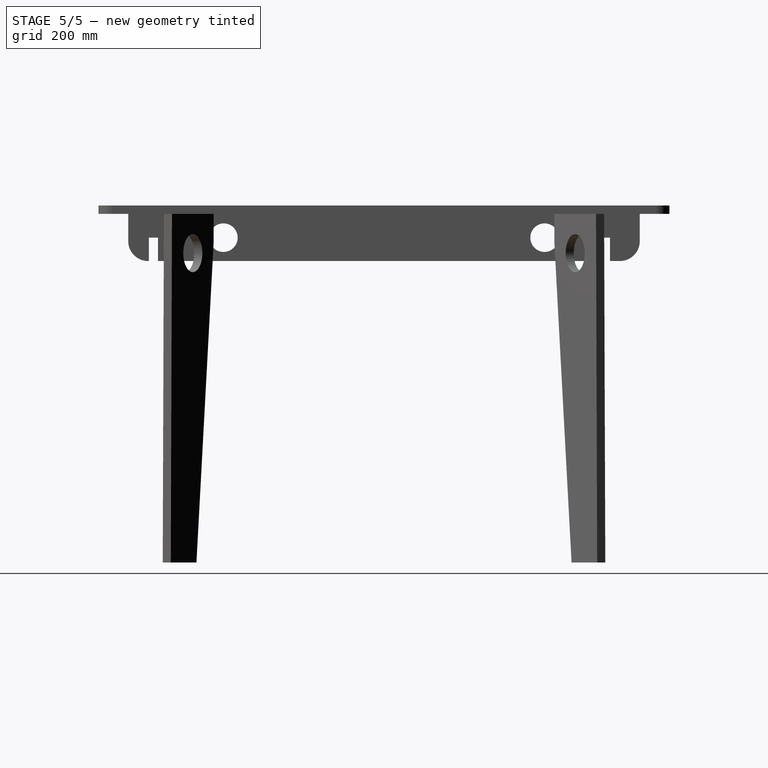
[diagram: stage 5 of 5 — right view after this stage's code; geometry added in this stage tinted green]
FEATURE [Sketcher::SketchObject] Sketch004  label="leg2"
  Placement = pos=(0,950,0) rot=(1,0,0;1.5708rad)
  expr: Constraints[54] = equations.chip
  expr: Constraints.Constraint40 = Constraints.tewi
  expr: Constraints.Constraint17 = equations.plw * 5.5
  expr: Constraints[15] = equations.lgh
  expr: Constraints.pocket = equations.pok
  expr: Constraints.Constraint16 = equations.lgwt
  sketch-geometry (24):
    g0: LineSegment StartX=-175 StartY=732.5 StartZ=0 EndX=-116.856 EndY=732.5 EndZ=0
    g1: LineSegment StartX=175 StartY=732.5 StartZ=0 EndX=200 EndY=0 EndZ=0
    g2: LineSegment StartX=200 StartY=0 StartZ=0 EndX=92.2 EndY=0 EndZ=0
    g3: LineSegment StartX=92.2 StartY=0 StartZ=0 EndX=92.3704 EndY=540.252 EndZ=0
    g4: LineSegment StartX=50.1356 StartY=582.5 StartZ=0 EndX=-50.1356 EndY=582.5 EndZ=0
    g5: LineSegment StartX=-92.3704 StartY=540.252 StartZ=0 EndX=-92.2 EndY=0 EndZ=0
    g6: LineSegment StartX=-92.2 StartY=0 StartZ=0 EndX=-200 EndY=0 EndZ=0
    g7: LineSegment StartX=-200 StartY=0 StartZ=0 EndX=-175 EndY=732.5 EndZ=0
    g8: LineSegment StartX=-116.856 StartY=750 StartZ=0 EndX=-46.8563 EndY=750 EndZ=0
    g9: LineSegment StartX=-46.8563 StartY=750 StartZ=0 EndX=-46.8563 EndY=732.5 EndZ=0
    g10: LineSegment StartX=-116.856 StartY=732.5 StartZ=0 EndX=-116.856 EndY=750 EndZ=0
    g11: LineSegment StartX=46.8563 StartY=750 StartZ=0 EndX=116.856 EndY=750 EndZ=0
    g12: LineSegment StartX=116.856 StartY=750 StartZ=0 EndX=116.856 EndY=732.5 EndZ=0
    g13: LineSegment StartX=46.8563 StartY=732.5 StartZ=0 EndX=46.8563 EndY=750 EndZ=0
    g14: LineSegment StartX=116.856 StartY=732.5 StartZ=0 EndX=175 EndY=732.5 EndZ=0
    g15: LineSegment StartX=-46.8563 StartY=732.5 StartZ=0 EndX=-9.55 EndY=732.5 EndZ=0
    g16: LineSegment StartX=9.55 StartY=732.5 StartZ=0 EndX=9.55 EndY=682.5 EndZ=0
    g17: LineSegment StartX=9.55 StartY=682.5 StartZ=0 EndX=-9.55 EndY=682.5 EndZ=0
    g18: LineSegment StartX=-9.55 StartY=682.5 StartZ=0 EndX=-9.55 EndY=732.5 EndZ=0
    g19: LineSegment StartX=9.55 StartY=732.5 StartZ=0 EndX=46.8563 EndY=732.5 EndZ=0
    g20: ArcOfCircle CenterX=50.1356 CenterY=540.265 CenterZ=0 NormalX=0 NormalY=0 NormalZ=1 Radius=42.2348 StartAngle=6.28287 EndAngle=7.85398
    g21: ArcOfCircle CenterX=-50.1356 CenterY=540.265 CenterZ=0 NormalX=0 NormalY=0 NormalZ=1 Radius=42.2348 StartAngle=1.5708 EndAngle=3.14191
    g22: Circle CenterX=-112.351 CenterY=652.5 CenterZ=0 NormalX=0 NormalY=0 NormalZ=1 Radius=40
    g23: Circle CenterX=112.351 CenterY=652.5 CenterZ=0 NormalX=0 NormalY=0 NormalZ=1 Radius=40
  constraints (59):
    c: Coincident(g14,g1)
    c: Coincident(g1,g2)
    c: Horizontal(g2)
    c: Coincident(g2,g3)
    c: Coincident(g5,g6)
    c: Horizontal(g6)
    c: Coincident(g6,g7)
    c: Coincident(g7,g0)
    c: Symmetric(g0,g14,g-2)
    c: Symmetric(g5,g2,g-2)
    c: Symmetric(g1,g6,g-2)
    c: PointOnObject(g1,g-1)  'onX'
    c: DistanceX(g6,g6) = 107.8  'Constraint17'
    c: DistanceX(g0,g14) = 350  'Constraint16'
    c: DistanceX(g6,g1) = 400  'Constraint15'
    c: DistanceY(g1,g14) = 732.5
    c: Coincident(g8,g9)
    c: Coincident(g10,g8)
    c: Horizontal(g8)
    c: Vertical(g9)
    c: Vertical(g10)
    c: Coincident(g11,g12)
    c: Coincident(g13,g11)
    c: Horizontal(g11)
    c: Vertical(g12)
    c: Vertical(g13)
    c: DistanceX(g8,g8) = 70  'tewi'
    c: DistanceX(g11,g11) = 70  'Constraint40'
    c: Tangent(g0,g14)  'Constraint39'
    c: Coincident(g13,g19)  'Constraint37'
    c: Coincident(g12,g14)  'Constraint36'
    c: Coincident(g0,g10)  'Constraint33'
    c: Coincident(g15,g9)
    c: Tangent(g0,g15)
    c: Symmetric(g9,g13,g-2)
    c: Coincident(g16,g17)
    c: Coincident(g17,g18)
    c: Horizontal(g17)
    c: Vertical(g16)
    c: Vertical(g18)
    c: Coincident(g15,g18)  'Constraint43'
    c: Coincident(g19,g16)  'Constraint42'
    c: Tangent(g15,g19)
    c: Tangent(g3,g20) = -1.5708
    c: Tangent(g4,g20) = -1.5708
    c: Tangent(g4,g21) = -1.5708
    c: Tangent(g5,g21) = -1.5708
    c: Symmetric(g21,g20,g-2)
    c: Horizontal(g4)
    c: DistanceY(g4,g1) = 150
    c: Symmetric(g22,g23,g-2)
    c: DistanceY(g23,g12) = 80
    c: Radius(g22) = 40
    c: Equal(g22,g23)
    c: DistanceY(g12,g12) = 17.5
    c: Equal(g9,g12)
    c: DistanceY(g16,g16) = 50
    c: DistanceX(g17,g17) = 19.1  'pocket'
    c: Symmetric(g16,g15,g-2)
FEATURE [PartDesign::Pad] Pad  label="legPad2"
  Length = 19.1
  Length2 = 100
  Placement = pos=(0,950,0) rot=(1,0,0;1.5708rad)
  Sketch = -> Sketch004
  Type = 0
  expr: Length = equations.pok
FEATURE [Part::FeaturePython] Clone001  label="Clone of topInitial"  # Draft clone (typed FeaturePython)
  Objects = -> [Pad002]
  Placement = pos=(0,0,750) rot=(0,0,1;0rad)
  Scale = (1,1,1)
FEATURE [Part::MultiFuse] Fusion  label="LEG"
  Placement = pos=(0,-950,0) rot=(0,0,1;0rad)
  Shapes = -> [Pad004,Pad]
FEATURE [Part::FeaturePython] Clone  label="Clone of LEGforStem"  # Draft clone (typed FeaturePython)
  Objects = -> [Fusion]
  Placement = pos=(0,-475,0) rot=(0,0,1;0rad)
  Scale = (1,1,1)
FEATURE [Part::FeaturePython] Clone002  label="Clone of LEGforTop"  # Draft clone (typed FeaturePython)
  Objects = -> [Fusion]
  Placement = pos=(0,-475,0) rot=(0,0,1;0rad)
  Scale = (1,1,1)
FEATURE [Part::Cut] Cut001  label="TOP"
  Base = -> Clone001
  Tool = -> Clone002
FEATURE [Part::Cut] Cut002  label="STEM"
  Base = -> Pocket
  Tool = -> Clone
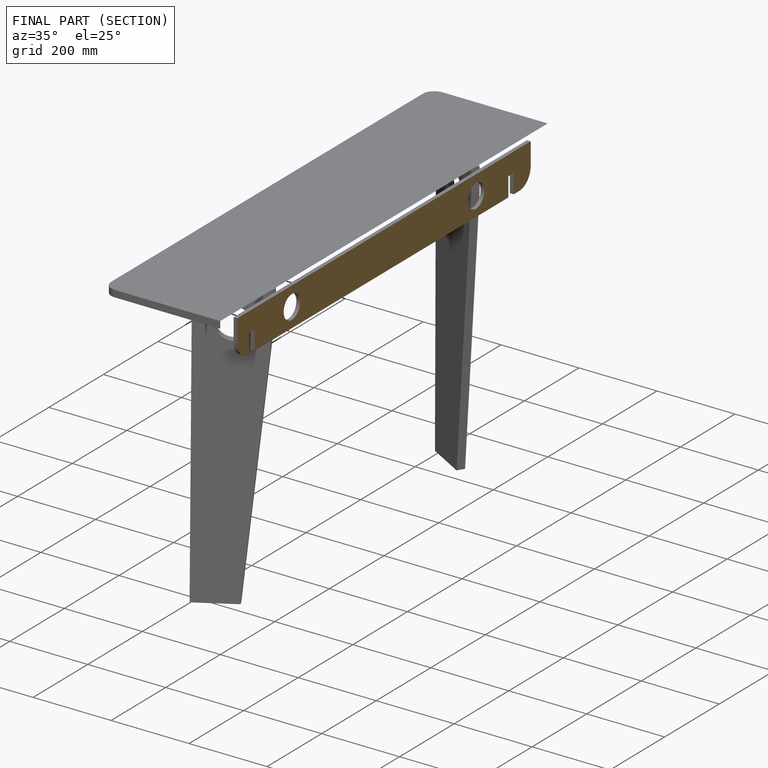
[diagram: finished part — half-section view (interior)]
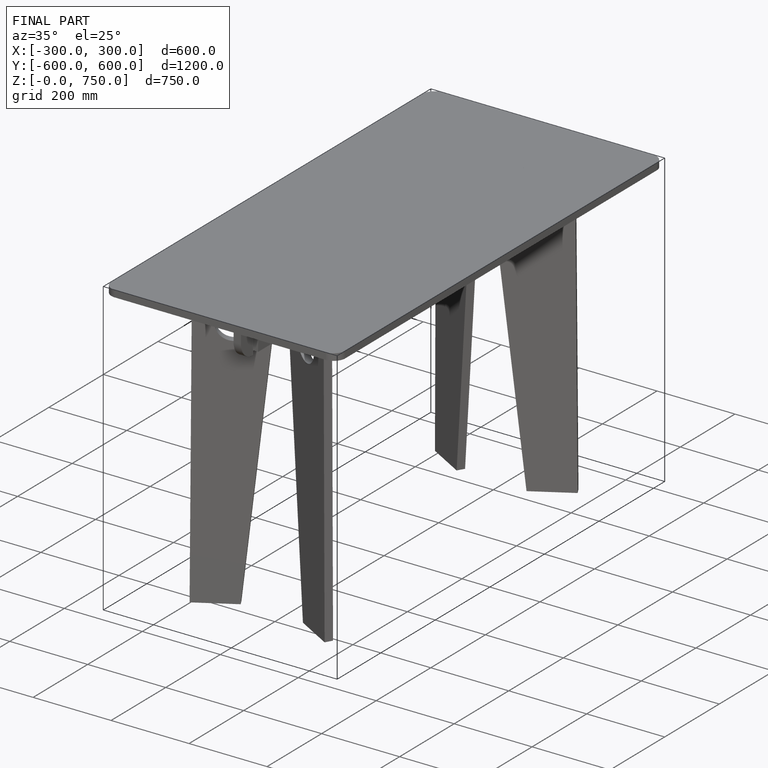
[diagram: finished part — iso view with bounding-box wireframe]
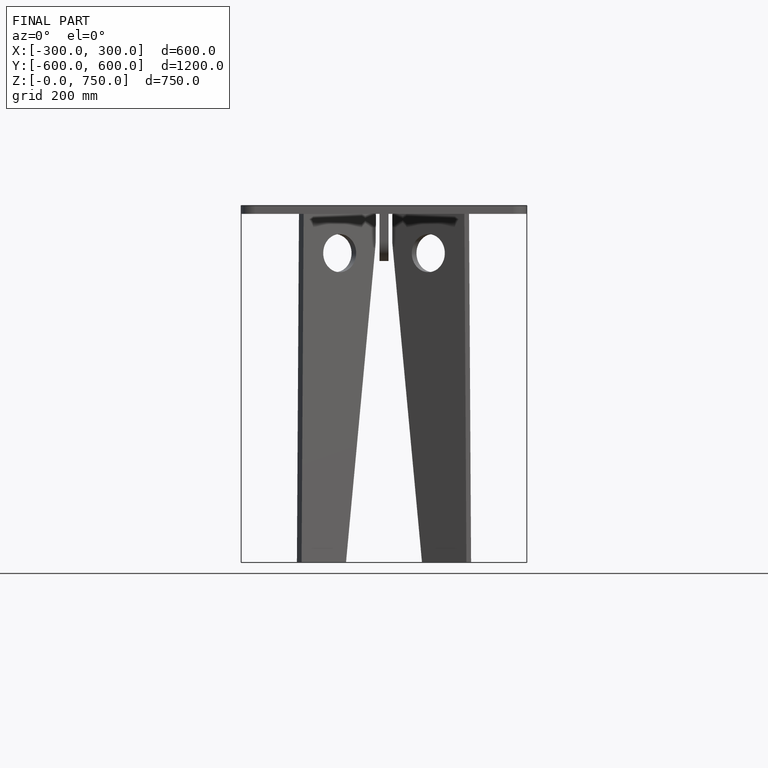
[diagram: finished part — front view with bounding-box wireframe]
